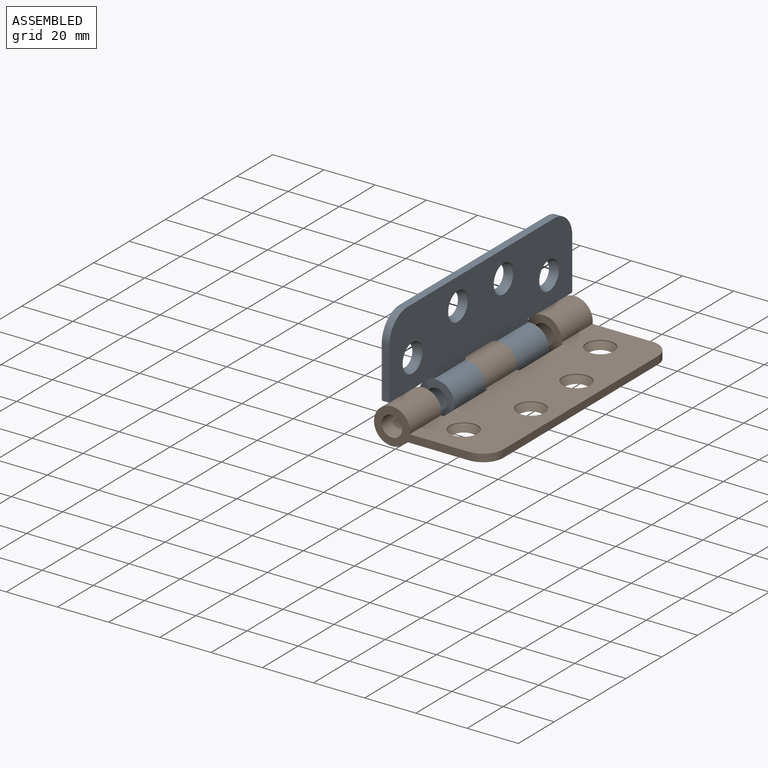
[diagram: assembled view]
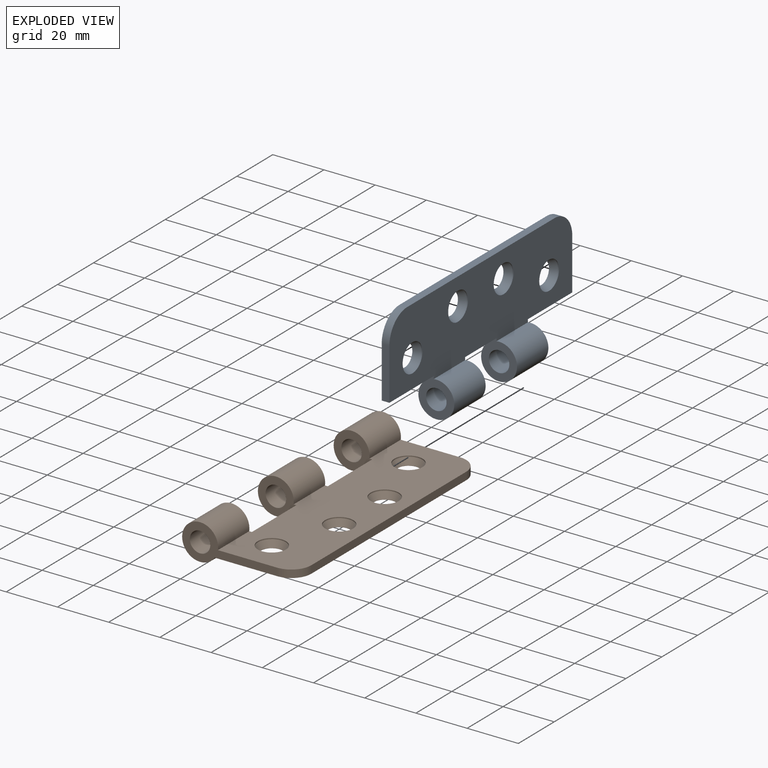
[diagram: exploded view]
GUIDED TOUR — FREECAD ASSEMBLY "OCT-LDHNG-AA"

This assembly has 2 components, labeled P0..P1 below (a component is one placed body or linked part; the same part can appear more than once), held together by 1 modeled joint. A joint is a constraint between two components; its type names the relative motion it leaves free:
  REVOLUTE — leaves rotation about the listed axis free (a hinge).
Axis/direction vectors are unit vectors and 'through' points are millimeter coordinates, both in the assembly's world frame.

MATES
  1. REVOLUTE [Revolute] "Joint": P0 <-> P1, axis (0.000, 1.000, 0.000) through (0.00, -59.75, 0.00) mm

ASSEMBLY ORDER
  1. P1 — the base component [order verified]
  2. P0 [order verified]
Order-tag legend:
  [order verified] — this step's position reverses a verified removal order: the component was checked to insert without passing through the ones already placed.

Of the 2 components, 2 carry a construction recipe — the FreeCAD feature program (sketches with constraints, then the solid features that consume them) that regenerates the part from scratch, quoted from this document or from the linked companion document it references; the rest are supplied as boundary geometry only. The tour below walks the components in assembly order: each is shown spotlighted twice — in the assembled view, then in the exploded view, where a leader line traces a displaced component back to its assembled socket (components that stay in place when exploded have no leader line; saturated green if recipe-attached, orange if geometry-only; every other component desaturated gray) — followed by its recipe or geometry summary and the mates that hold it.
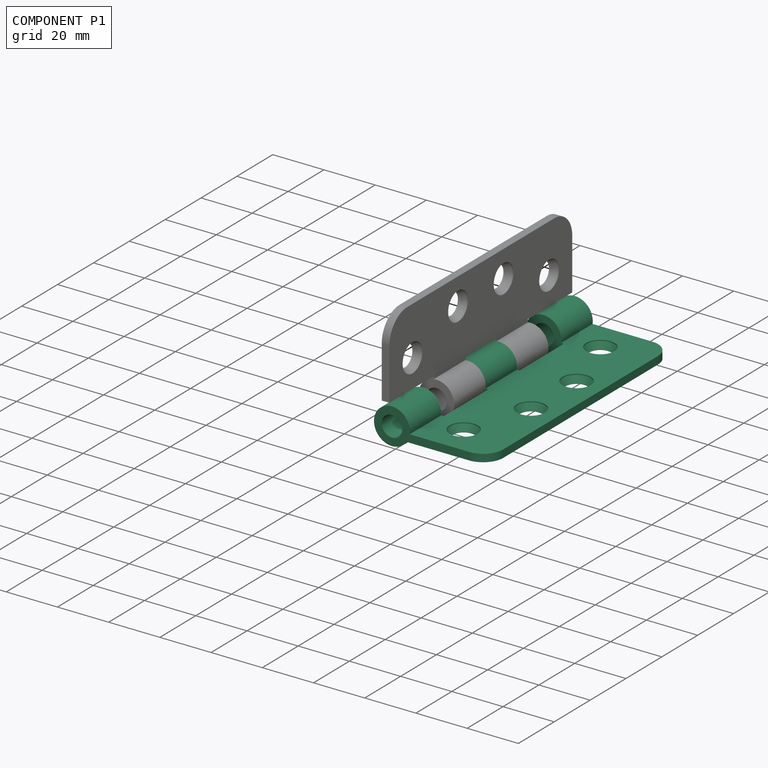
[diagram: component P1 — assembled]
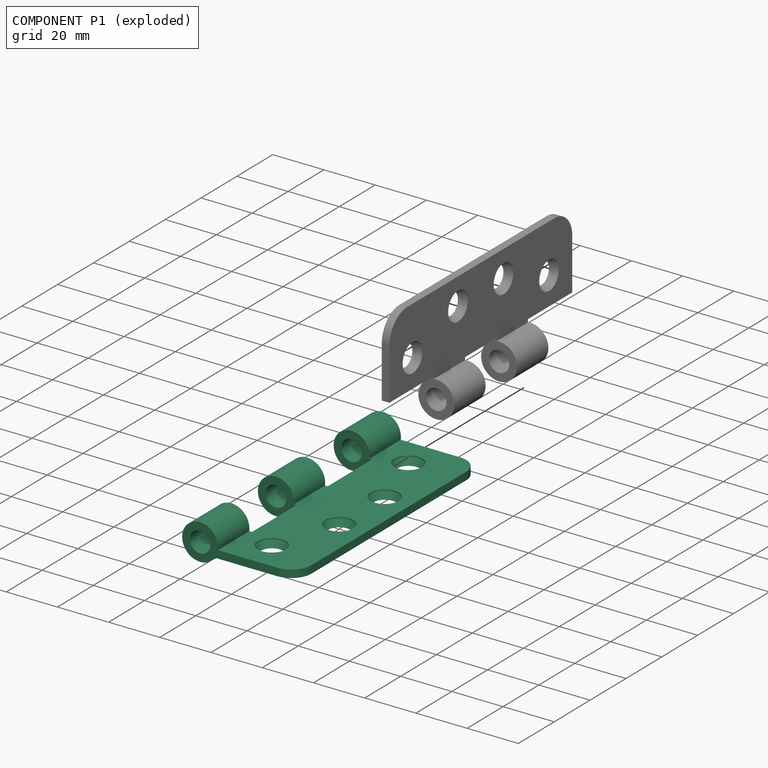
[diagram: component P1 — exploded]
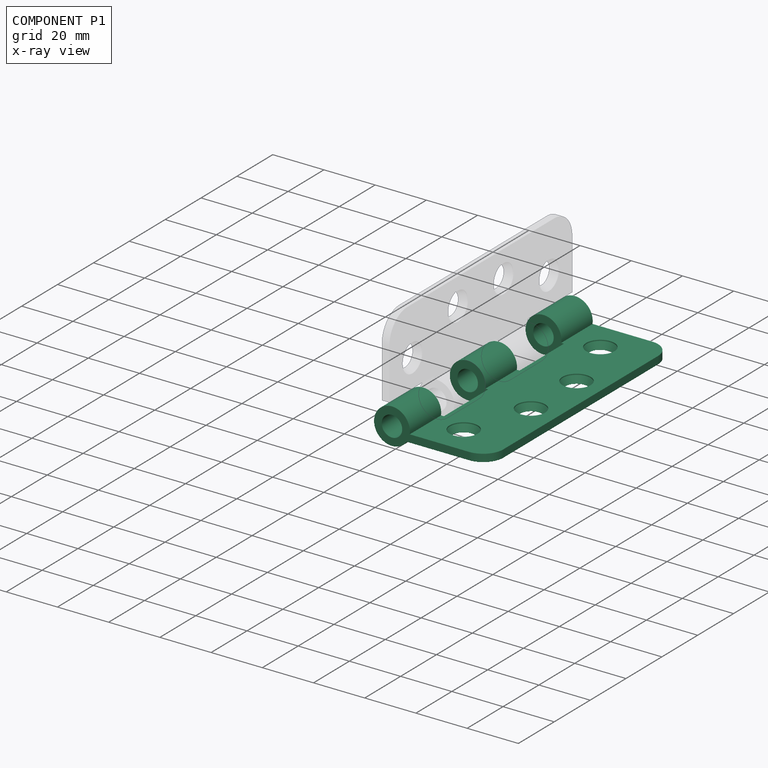
[diagram: component P1 — x-ray view]
COMPONENT P1 — recipe-attached ("outer half", modeled in this document).
Held by: REVOLUTE mate "Joint" to P0.
Construction recipe (the document's own serialized feature program — sketch geometry with constraints, then the solid features built on it; lengths are millimeters unless a unit is written):

FEATURE [Sketcher::SketchObject] Sketch
  ArcFitTolerance = 0
  AttachmentSupport = -> [XZ_Plane001]
  FullyConstrained = true
  MakeInternals = false
  MapMode = 5
  Placement = pos=(0,0,0) rot=(1,0,0;1.5708rad)
  sketch-geometry (6):
    g0: ArcOfCircle CenterX=0 CenterY=0 CenterZ=0 NormalX=0 NormalY=0 NormalZ=1 AngleXU=0 Radius=7 StartAngle=6.13984 EndAngle=11.9581
    g1: LineSegment StartX=6.9282 StartY=-1 StartZ=0 EndX=38 EndY=-1 EndZ=0
    g2: LineSegment StartX=38 StartY=-1 StartZ=0 EndX=38 EndY=-4 EndZ=0
    g3: LineSegment StartX=38 StartY=-4 StartZ=0 EndX=5.74456 EndY=-4 EndZ=0
    g4: GeomPoint [constr] X=0 Y=-7 Z=0
    g5: Circle CenterX=0 CenterY=0 CenterZ=0 NormalX=0 NormalY=0 NormalZ=1 AngleXU=0 Radius=4
  constraints (16):
    c: Coincident(g1,g0)
    c: Horizontal(g1)
    c: Coincident(g2,g1)
    c: Vertical(g2)
    c: Coincident(g3,g2)
    c: Coincident(g3,g0)
    c: Coincident(g0,g-1)
    c: Horizontal(g3)
    c: DistanceY(g2,g2) = 3
    c: PointOnObject(g4,g0)
    c: PointOnObject(g4,g-2)
    c: DistanceY(g4,g0) = 3
    c: Radius(g0) = 7
    c: DistanceX(g0,g1) = 38
    c: Coincident(g5,g0)
    c: Diameter(g5) = 8
FEATURE [PartDesign::Pad] Pad
  Direction = (0,-1,2e-16)
  Length = 102
  Length2 = 10
  Placement = pos=(0,0,0) rot=(1,0,0;1.5708rad)
  Profile = -> Sketch
  ReferenceAxis = -> Sketch [N_Axis]
  Suppressed = false
  Type = 0
FEATURE [Sketcher::SketchObject] Sketch001
  ArcFitTolerance = 0
  AttachmentSupport = -> [XY_Plane001]
  FullyConstrained = true
  MakeInternals = false
  MapMode = 5
  sketch-geometry (18):
    g0: LineSegment StartX=8 StartY=-17.5 StartZ=0 EndX=8 EndY=-42.25 EndZ=0
    g1: LineSegment StartX=8 StartY=-42.25 StartZ=0 EndX=-7 EndY=-42.25 EndZ=0
    g2: LineSegment StartX=-7 StartY=-42.25 StartZ=0 EndX=-7 EndY=-17.5 EndZ=0
    g3: LineSegment StartX=-7 StartY=-59.75 StartZ=0 EndX=8 EndY=-59.75 EndZ=0
    g4: LineSegment StartX=8 StartY=-59.75 StartZ=0 EndX=8 EndY=-84.5 EndZ=0
    g5: LineSegment StartX=8 StartY=-84.5 StartZ=0 EndX=-7 EndY=-84.5 EndZ=0
    g6: LineSegment StartX=-7 StartY=-84.5 StartZ=0 EndX=-7 EndY=-59.75 EndZ=0
    g7: LineSegment [constr] StartX=8 StartY=-17.5 StartZ=0 EndX=8 EndY=0 EndZ=0
    g8: LineSegment [constr] StartX=8 StartY=0 StartZ=0 EndX=-7 EndY=0 EndZ=0
    g9: LineSegment [constr] StartX=-7 StartY=0 StartZ=0 EndX=-7 EndY=-17.5 EndZ=0
    g10: LineSegment [constr] StartX=-7 StartY=-42.25 StartZ=0 EndX=8 EndY=-42.25 EndZ=0
    g11: LineSegment [constr] StartX=8 StartY=-42.25 StartZ=0 EndX=8 EndY=-59.75 EndZ=0
    g12: LineSegment [constr] StartX=-7 StartY=-59.75 StartZ=0 EndX=-7 EndY=-42.25 EndZ=0
    g13: LineSegment [constr] StartX=8 StartY=-84.5 StartZ=0 EndX=8 EndY=-102 EndZ=0
    g14: LineSegment [constr] StartX=8 StartY=-102 StartZ=0 EndX=-7 EndY=-102 EndZ=0
    g15: LineSegment [constr] StartX=-7 StartY=-102 StartZ=0 EndX=-7 EndY=-84.5 EndZ=0
    g16: LineSegment StartX=-7 StartY=-17.5 StartZ=0 EndX=8 EndY=-17.5 EndZ=0
    g17: LineSegment [constr] StartX=0 StartY=0 StartZ=0 EndX=0 EndY=-102 EndZ=0
  constraints (49):
    c: Coincident(g0,g1)
    c: Coincident(g1,g2)
    c: Horizontal(g1)
    c: Vertical(g0)
    c: Vertical(g2)
    c: Coincident(g4,g5)
    c: Coincident(g5,g6)
    c: Coincident(g6,g3)
    c: Horizontal(g3)
    c: Horizontal(g5)
    c: Vertical(g4)
    c: Vertical(g6)
    c: Coincident(g7,g8)
    c: Coincident(g8,g9)
    c: Horizontal(g8)
    c: Vertical(g7)
    c: Vertical(g9)
    c: Coincident(g10,g11)
    c: Coincident(g12,g10)
    c: Vertical(g11)
    c: Vertical(g12)
    c: Coincident(g13,g14)
    c: Coincident(g14,g15)
    c: Horizontal(g14)
    c: Vertical(g13)
    c: Vertical(g15)
    c: Coincident(g10,g1)
    c: Coincident(g0,g10)
    c: Coincident(g16,g0)
    c: Horizontal(g16)
    c: Coincident(g16,g2)
    c: Coincident(g3,g12)
    c: Coincident(g3,g11)
    c: Coincident(g4,g3)
    c: Coincident(g0,g7)
    c: Coincident(g13,g4)
    c: Coincident(g15,g5)
    c: Coincident(g9,g2)
    c: DistanceX(g8,g8) = 15
    c: PointOnObject(g17,g8)
    c: PointOnObject(g17,g14)
    c: Vertical(g17)
    c: DistanceX(g8,g17) = 7
    c: Equal(g9,g12)
    c: Equal(g12,g15)
    c: DistanceY(g9,g9) = 17.5
    c: DistanceY(g14,g8) = 102
    c: Equal(g6,g2)
    c: Coincident(g17,g-1)
FEATURE [PartDesign::Pocket] Pocket  label="loops outer"
  BaseFeature = -> Pad
  Direction = (0,0,-1)
  Length = 14
  Length2 = 5
  Midplane = true
  Placement = pos=(0,0,0) rot=(1,0,0;1.5708rad)
  Profile = -> Sketch001
  ReferenceAxis = -> Sketch001 [N_Axis]
  Suppressed = false
  Type = 0
FEATURE [PartDesign::Plane] DatumPlane  label="outer top face"
  AttachmentOffset = pos=(0,0,-1) rot=(0,0,1;0rad)
  AttachmentSupport = -> [XY_Plane001]
  Length = 80.8897
  MapMode = 5
  Placement = pos=(0,0,-1) rot=(0,0,1;0rad)
  ResizeMode = 0
  Width = 144.89
FEATURE [Sketcher::SketchObject] Sketch002
  ArcFitTolerance = 0
  AttachmentSupport = -> [DatumPlane]
  FullyConstrained = true
  MakeInternals = false
  MapMode = 5
  Placement = pos=(0,0,-1) rot=(0,0,1;0rad)
  sketch-geometry (9):
    g0: Circle CenterX=19 CenterY=-12.9 CenterZ=0 NormalX=0 NormalY=0 NormalZ=1 AngleXU=0 Radius=4
    g1: Circle CenterX=27.5 CenterY=-38.3 CenterZ=0 NormalX=0 NormalY=0 NormalZ=1 AngleXU=0 Radius=4
    g2: Circle CenterX=27.5 CenterY=-63.7 CenterZ=0 NormalX=0 NormalY=0 NormalZ=1 AngleXU=0 Radius=4
    g3: Circle CenterX=19 CenterY=-89.1 CenterZ=0 NormalX=0 NormalY=0 NormalZ=1 AngleXU=0 Radius=4
    g4: LineSegment [constr] StartX=19 StartY=-89.1 StartZ=0 EndX=19 EndY=-12.9 EndZ=0
    g5: LineSegment [constr] StartX=19 StartY=-12.9 StartZ=0 EndX=27.5 EndY=-38.3 EndZ=0
    g6: LineSegment [constr] StartX=27.5 StartY=-38.3 StartZ=0 EndX=27.5 EndY=-63.7 EndZ=0
    g7: LineSegment [constr] StartX=27.5 StartY=-63.7 StartZ=0 EndX=19 EndY=-89.1 EndZ=0
    g8: LineSegment [constr] StartX=0 StartY=-51 StartZ=0 EndX=19 EndY=-51 EndZ=0
  constraints (23):
    c: Coincident(g4,g3)
    c: Coincident(g4,g0)
    c: Coincident(g5,g0)
    c: Coincident(g5,g1)
    c: Coincident(g6,g1)
    c: Coincident(g6,g2)
    c: Coincident(g7,g6)
    c: Coincident(g7,g3)
    c: Vertical(g4)
    c: Vertical(g6)
    c: Equal(g5,g7)
    c: Equal(g2,g1)
    c: Equal(g1,g0)
    c: Equal(g0,g3)
    c: Diameter(g0) = 8
    c: DistanceY(g8,g-1) = 51
    c: PointOnObject(g8,g-2)
    c: Symmetric(g1,g2,g8)
    c: DistanceX(g-1,g3) = 19
    c: DistanceX(g-1,g2) = 27.5
    c: DistanceY(g6,g6) = 25.4
    c: PointOnObject(g8,g4)
    c: DistanceY(g4,g4) = 76.2
FEATURE [PartDesign::Hole] Hole  label="mounting holes outer"
  BaseFeature = -> Pocket
  CustomThreadClearance = 0
  Depth = 226.969
  DepthType = 1
  Diameter = 8.4
  DrillForDepth = true
  DrillPoint = 1
  DrillPointAngle = 118
  HoleCutCountersinkAngle = 55
  HoleCutCustomValues = false
  HoleCutDepth = 0.4
  HoleCutDiameter = 11
  HoleCutType = 3
  ModelThread = false
  Placement = pos=(0,0,0) rot=(1,0,0;1.5708rad)
  Profile = -> Sketch002
  Suppressed = false
  Tapered = false
  TaperedAngle = 90
  ThreadClass = 0
  ThreadDepth = 226.969
  ThreadDepthType = 0
  ThreadDirection = 0
  ThreadFit = 1
  ThreadSize = 16
  ThreadType = 1
  Threaded = false
  UseCustomThreadClearance = false
FEATURE [PartDesign::Fillet] Fillet
  Base = -> Hole [Edge42,Edge9]
  BaseFeature = -> Hole
  Placement = pos=(0,0,0) rot=(1,0,0;1.5708rad)
  Radius = 7.9
  SupportTransform = false
  Suppressed = false
  UseAllEdges = false
FEATURE [PartDesign::Body] outer_half  label="outer half"
  AllowCompound = false
  Group = -> [DatumPlane,Sketch,Pad,Sketch001,Pocket,Sketch002,Hole,Fillet]
  Origin = -> Origin001
  Tip = -> Fillet
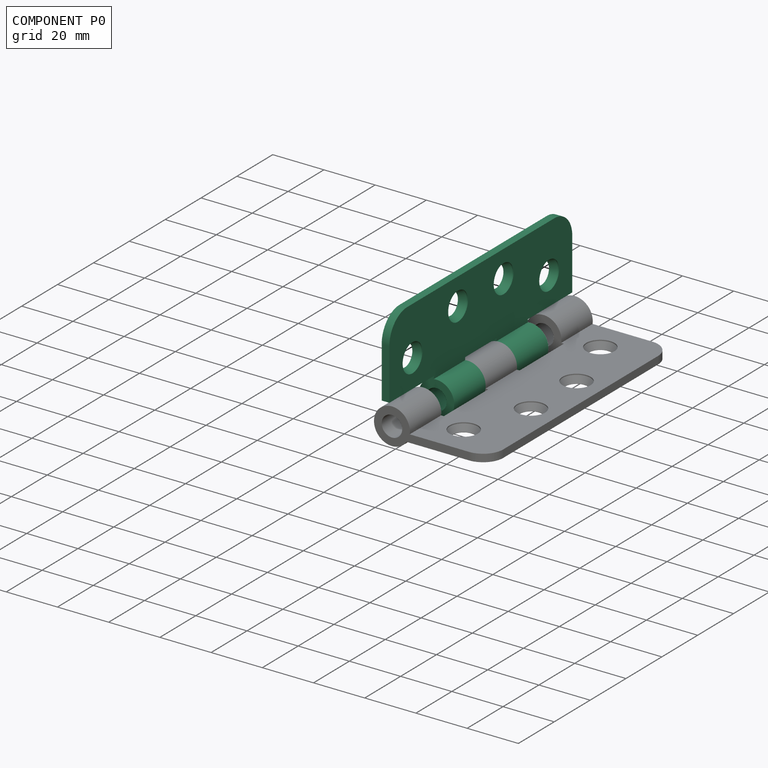
[diagram: component P0 — assembled]
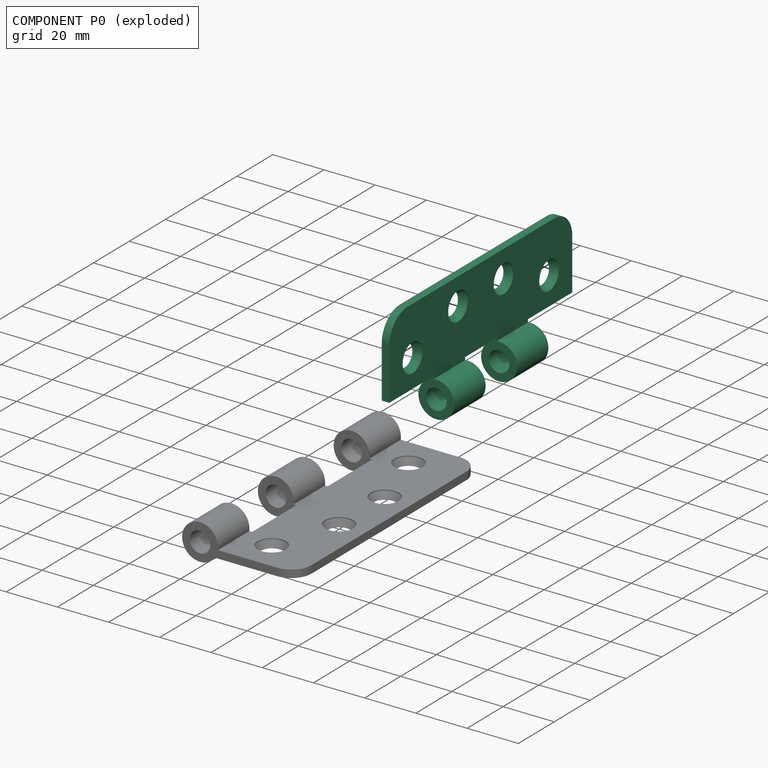
[diagram: component P0 — exploded]
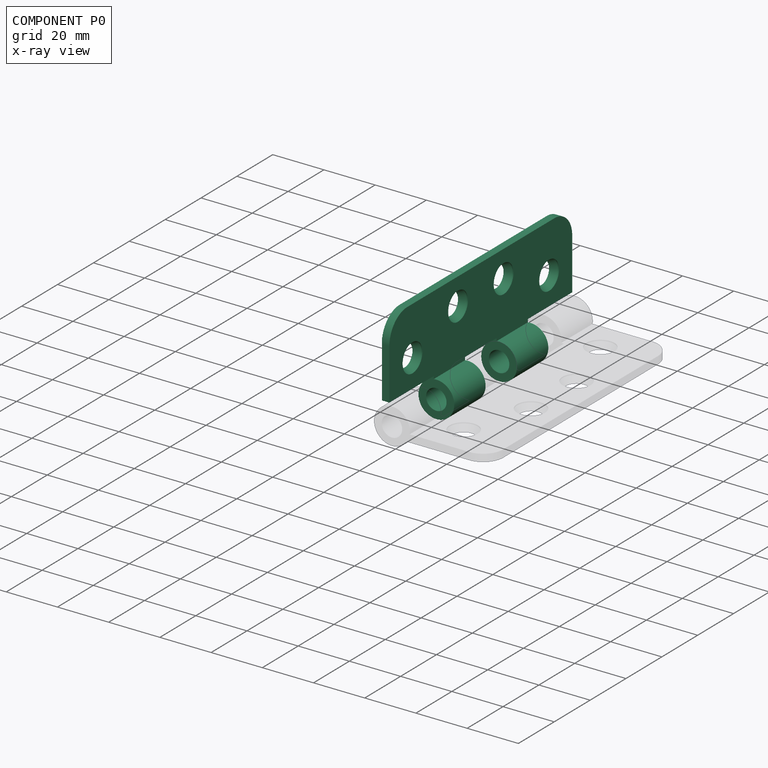
[diagram: component P0 — x-ray view]
COMPONENT P0 — recipe-attached ("inner half", modeled in this document).
Held by: REVOLUTE mate "Joint" to P1.
Construction recipe (the document's own serialized feature program — sketch geometry with constraints, then the solid features built on it; lengths are millimeters unless a unit is written):

FEATURE [Sketcher::SketchObject] Sketch003
  ArcFitTolerance = 0
  AttachmentSupport = -> [XZ_Plane002]
  FullyConstrained = true
  MakeInternals = false
  MapMode = 5
  Placement = pos=(0,0,0) rot=(1,0,0;1.5708rad)
  expr: Constraints[17] = 180 - <<local>>.HingeAngle
  sketch-geometry (7):
    g0: Circle CenterX=0 CenterY=0 CenterZ=0 NormalX=0 NormalY=0 NormalZ=1 AngleXU=0 Radius=4
    g1: ArcOfCircle CenterX=0 CenterY=0 CenterZ=0 NormalX=0 NormalY=0 NormalZ=1 AngleXU=0 Radius=7 StartAngle=2.17904 EndAngle=7.99733
    g2: LineSegment StartX=-1 StartY=6.9282 StartZ=0 EndX=-1 EndY=38 EndZ=0
    g3: LineSegment StartX=-1 StartY=38 StartZ=0 EndX=-4 EndY=38 EndZ=0
    g4: LineSegment StartX=-4 StartY=38 StartZ=0 EndX=-4 EndY=5.74456 EndZ=0
    g5: GeomPoint [constr] X=-7 Y=9e-16 Z=0
    g6: LineSegment [constr] StartX=-7 StartY=9e-16 StartZ=0 EndX=-4 EndY=5e-16 EndZ=0
  constraints (19):
    c: Coincident(g-1,g0)
    c: Diameter(g0) = 8
    c: Coincident(g2,g1)
    c: Coincident(g3,g2)
    c: Coincident(g4,g3)
    c: Coincident(g1,g4)
    c: Perpendicular(g3,g2)
    c: Distance(g3) = 3
    c: Perpendicular(g3,g4)
    c: PointOnObject(g5,g1)
    c: Coincident(g6,g5)
    c: Perpendicular(g1,g6)
    c: Perpendicular(g4,g6)
    c: Distance(g6) = 3
    c: PointOnObject(g6,g4)
    c: Coincident(g1,g0)
    c: Radius(g1) = 7
    c: Angle(g-2,g6) = 1.5708
    c: Distance(g6,g3) = 38
FEATURE [PartDesign::Pad] Pad001
  Direction = (0,-1,2e-16)
  Length = 102
  Length2 = 10
  Placement = pos=(0,0,0) rot=(1,0,0;1.5708rad)
  Profile = -> Sketch003
  ReferenceAxis = -> Sketch003 [N_Axis]
  Suppressed = false
  Type = 0
FEATURE [PartDesign::Plane] DatumPlane001  label="inner top face"
  AttachmentOffset = pos=(-1,0,-1e-16) rot=(0,1,0;1.5708rad)
  AttachmentSupport = -> [XY_Plane002]
  Length = 80.8897
  MapMode = 5
  Placement = pos=(-1,0,-1e-16) rot=(0,1,0;1.5708rad)
  ResizeMode = 0
  Width = 144.89
  expr: .AttachmentOffset.Base.x = -sin(<<local>>.HingeAngle)
  expr: .AttachmentOffset.Base.z = -cos(<<local>>.HingeAngle)
  expr: .AttachmentOffset.Rotation.Pitch = <<local>>.HingeAngle
FEATURE [Sketcher::SketchObject] Sketch004
  ArcFitTolerance = 0
  AttachmentSupport = -> [DatumPlane001]
  FullyConstrained = true
  MakeInternals = false
  MapMode = 5
  Placement = pos=(-1,0,-1e-16) rot=(0,1,0;1.5708rad)
  sketch-geometry (18):
    g0: LineSegment StartX=7 StartY=-24.75 StartZ=0 EndX=-8 EndY=-24.75 EndZ=0
    g1: LineSegment [constr] StartX=-8 StartY=-24.75 StartZ=0 EndX=-8 EndY=-42.25 EndZ=0
    g2: LineSegment StartX=-8 StartY=-42.25 StartZ=0 EndX=7 EndY=-42.25 EndZ=0
    g3: LineSegment [constr] StartX=7 StartY=-42.25 StartZ=0 EndX=7 EndY=-24.75 EndZ=0
    g4: LineSegment StartX=-8 StartY=-59.75 StartZ=0 EndX=7 EndY=-59.75 EndZ=0
    g5: LineSegment [constr] StartX=7 StartY=-59.75 StartZ=0 EndX=7 EndY=-77.25 EndZ=0
    g6: LineSegment StartX=7 StartY=-77.25 StartZ=0 EndX=-8 EndY=-77.25 EndZ=0
    g7: LineSegment [constr] StartX=-8 StartY=-77.25 StartZ=0 EndX=-8 EndY=-59.75 EndZ=0
    g8: LineSegment StartX=-8 StartY=-42.25 StartZ=0 EndX=-8 EndY=-59.75 EndZ=0
    g9: LineSegment StartX=7 StartY=-59.75 StartZ=0 EndX=7 EndY=-42.25 EndZ=0
    g10: LineSegment [constr] StartX=0 StartY=-51 StartZ=0 EndX=7 EndY=-51 EndZ=0
    g11: GeomPoint [constr] X=0 Y=-24.75 Z=0
    g12: LineSegment StartX=7 StartY=-24.75 StartZ=0 EndX=7 EndY=0 EndZ=0
    g13: LineSegment StartX=7 StartY=0 StartZ=0 EndX=-8 EndY=0 EndZ=0
    g14: LineSegment StartX=-8 StartY=0 StartZ=0 EndX=-8 EndY=-24.75 EndZ=0
    g15: LineSegment StartX=-8 StartY=-77.25 StartZ=0 EndX=-8 EndY=-102 EndZ=0
    g16: LineSegment StartX=-8 StartY=-102 StartZ=0 EndX=7 EndY=-102 EndZ=0
    g17: LineSegment StartX=7 StartY=-102 StartZ=0 EndX=7 EndY=-77.25 EndZ=0
  constraints (49):
    c: Coincident(g0,g1)
    c: Coincident(g1,g2)
    c: Coincident(g2,g3)
    c: Coincident(g3,g0)
    c: Horizontal(g0)
    c: Horizontal(g2)
    c: Vertical(g1)
    c: Vertical(g3)
    c: Coincident(g4,g5)
    c: Coincident(g5,g6)
    c: Coincident(g6,g7)
    c: Coincident(g7,g4)
    c: Horizontal(g4)
    c: Horizontal(g6)
    c: Vertical(g5)
    c: Vertical(g7)
    c: Coincident(g8,g1)
    c: Coincident(g8,g4)
    c: Vertical(g8)
    c: Coincident(g9,g4)
    c: Coincident(g9,g2)
    c: Vertical(g9)
    c: DistanceX(g0,g0) = 15
    c: DistanceY(g3,g3) = 17.5
    c: Equal(g5,g3)
    c: PointOnObject(g10,g-2)
    c: DistanceY(g10,g-1) = 51
    c: PointOnObject(g10,g9)
    c: Symmetric(g4,g2,g10)
    c: Equal(g9,g3)
    c: PointOnObject(g11,g0)
    c: DistanceX(g11,g0) = 7
    c: PointOnObject(g11,g-2)
    c: Coincident(g12,g0)
    c: Vertical(g12)
    c: Horizontal(g13)
    c: Coincident(g14,g13)
    c: Coincident(g14,g0)
    c: Coincident(g15,g6)
    c: Vertical(g15)
    c: Coincident(g16,g15)
    c: Horizontal(g16)
    c: Coincident(g17,g16)
    c: Coincident(g17,g5)
    c: Vertical(g17)
    c: Vertical(g14)
    c: Coincident(g13,g12)
    c: PointOnObject(g13,g-1)
    c: DistanceY(g15,g13) = 102
FEATURE [PartDesign::Pocket] Pocket001  label="loops inner"
  BaseFeature = -> Pad001
  Direction = (-1,0,-2e-16)
  Length = 6
  Length2 = 8
  Midplane = true
  Placement = pos=(0,0,0) rot=(1,0,0;1.5708rad)
  Profile = -> Sketch004
  ReferenceAxis = -> Sketch004 [N_Axis]
  Suppressed = false
  Type = 4
FEATURE [Sketcher::SketchObject] Sketch005
  ArcFitTolerance = 0
  AttachmentSupport = -> [DatumPlane001]
  FullyConstrained = true
  MakeInternals = false
  MapMode = 5
  Placement = pos=(-1,0,-1e-16) rot=(0,1,0;1.5708rad)
  sketch-geometry (9):
    g0: LineSegment [constr] StartX=-19 StartY=-12.9 StartZ=0 EndX=-19 EndY=-89.1 EndZ=0
    g1: LineSegment [constr] StartX=-19 StartY=-89.1 StartZ=0 EndX=-27.5 EndY=-63.7 EndZ=0
    g2: LineSegment [constr] StartX=-27.5 StartY=-63.7 StartZ=0 EndX=-27.5 EndY=-38.3 EndZ=0
    g3: LineSegment [constr] StartX=-27.5 StartY=-38.3 StartZ=0 EndX=-19 EndY=-12.9 EndZ=0
    g4: LineSegment [constr] StartX=0 StartY=-51 StartZ=0 EndX=-27.5 EndY=-51 EndZ=0
    g5: Circle CenterX=-19 CenterY=-12.9 CenterZ=0 NormalX=0 NormalY=0 NormalZ=1 AngleXU=0 Radius=4
    g6: Circle CenterX=-19 CenterY=-89.1 CenterZ=0 NormalX=0 NormalY=0 NormalZ=1 AngleXU=0 Radius=4
    g7: Circle CenterX=-27.5 CenterY=-63.7 CenterZ=0 NormalX=0 NormalY=0 NormalZ=1 AngleXU=0 Radius=4
    g8: Circle CenterX=-27.5 CenterY=-38.3 CenterZ=0 NormalX=0 NormalY=0 NormalZ=1 AngleXU=0 Radius=4
  constraints (23):
    c: Vertical(g0)
    c: Coincident(g0,g1)
    c: Coincident(g1,g2)
    c: Vertical(g2)
    c: Coincident(g2,g3)
    c: Coincident(g3,g0)
    c: Equal(g3,g1)
    c: DistanceY(g2,g2) = 25.4
    c: DistanceY(g0,g0) = 76.2
    c: PointOnObject(g4,g-2)
    c: Symmetric(g1,g2,g4)
    c: DistanceX(g0,g-1) = 19
    c: DistanceX(g2,g-1) = 27.5
    c: PointOnObject(g4,g2)
    c: DistanceY(g4,g-1) = 51
    c: Coincident(g5,g0)
    c: Coincident(g6,g0)
    c: Coincident(g7,g1)
    c: Coincident(g8,g2)
    c: Equal(g8,g5)
    c: Equal(g5,g7)
    c: Equal(g7,g6)
    c: Diameter(g6) = 8
FEATURE [PartDesign::Hole] Hole001  label="mounting holes inner"
  BaseFeature = -> Pocket001
  CustomThreadClearance = 0
  Depth = 25
  DepthType = 0
  Diameter = 8.4
  DrillForDepth = false
  DrillPoint = 1
  DrillPointAngle = 118
  HoleCutCountersinkAngle = 55
  HoleCutCustomValues = false
  HoleCutDepth = 0.4
  HoleCutDiameter = 11
  HoleCutType = 3
  ModelThread = false
  Placement = pos=(0,0,0) rot=(1,0,0;1.5708rad)
  Profile = -> Sketch005
  Suppressed = false
  Tapered = false
  TaperedAngle = 90
  ThreadClass = 0
  ThreadDepth = 25
  ThreadDepthType = 0
  ThreadDirection = 0
  ThreadFit = 1
  ThreadSize = 16
  ThreadType = 1
  Threaded = false
  UseCustomThreadClearance = false
FEATURE [PartDesign::Fillet] Fillet001
  Base = -> Hole001 [Edge48,Edge47]
  BaseFeature = -> Hole001
  Placement = pos=(0,0,0) rot=(1,0,0;1.5708rad)
  Radius = 10
  Refine = true
  SupportTransform = false
  Suppressed = false
  UseAllEdges = false
FEATURE [PartDesign::Body] Body  label="inner half"
  AllowCompound = false
  Group = -> [DatumPlane001,Sketch003,Pad001,Sketch004,Pocket001,Sketch005,Hole001,Fillet001]
  Origin = -> Origin002
  Tip = -> Fillet001
PROVENANCE & LICENSES
Assembly and component geometry: a FreeCAD (.FCStd) document from a public repository crawl; components, placements and joints were extracted with FreeCAD and each solid tessellated.
Construction recipes: the document's own serialized feature recipes (and, for linked parts, the recipes of companion documents from the same project).
License: mit.
Joints: native FreeCAD joints and A2plus constraints are mapped to standard mate types.
Verification: 2 of this assembly's 2 components carry a construction recipe (2 from this document itself); the rest are geometry-only. Every component's tessellation passed the extraction mesh gates (mesh-volume checksum against the B-rep where available, bounding-box inflation <= 2%).
Renders: orthographic iso camera (az 35 / el 25); the floor grid conveys scale (grid pitch printed in each image; no ruler). In the exploded view each component is displaced by its stored offset vector: the offsets alone carry the explosion direction (mate normal/axis signs are not orientation cues and do not encode it), and separation distances are assigned per mate-chain, not proportionally to assembly-order depth.
